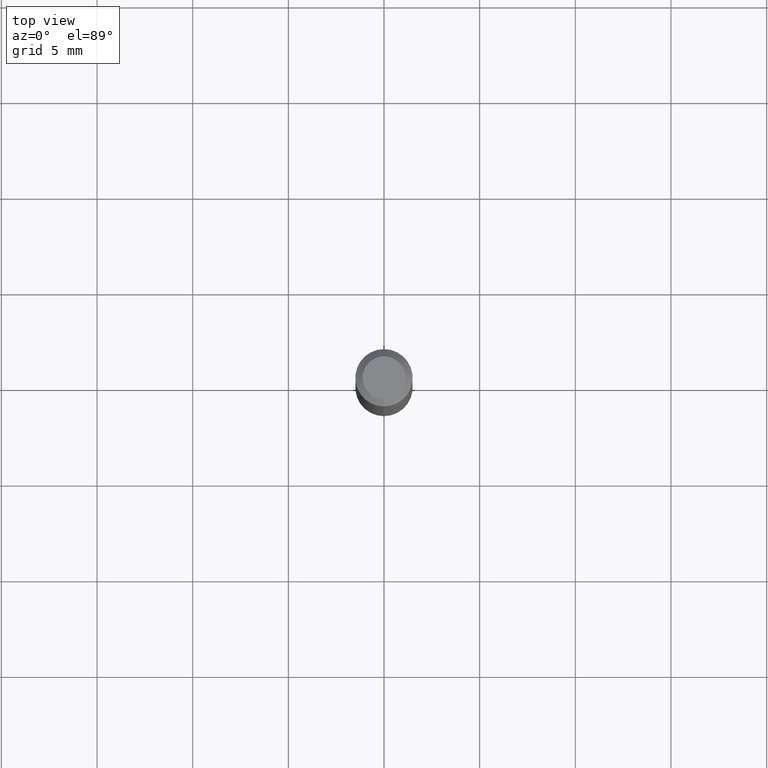
[diagram: clean part render]
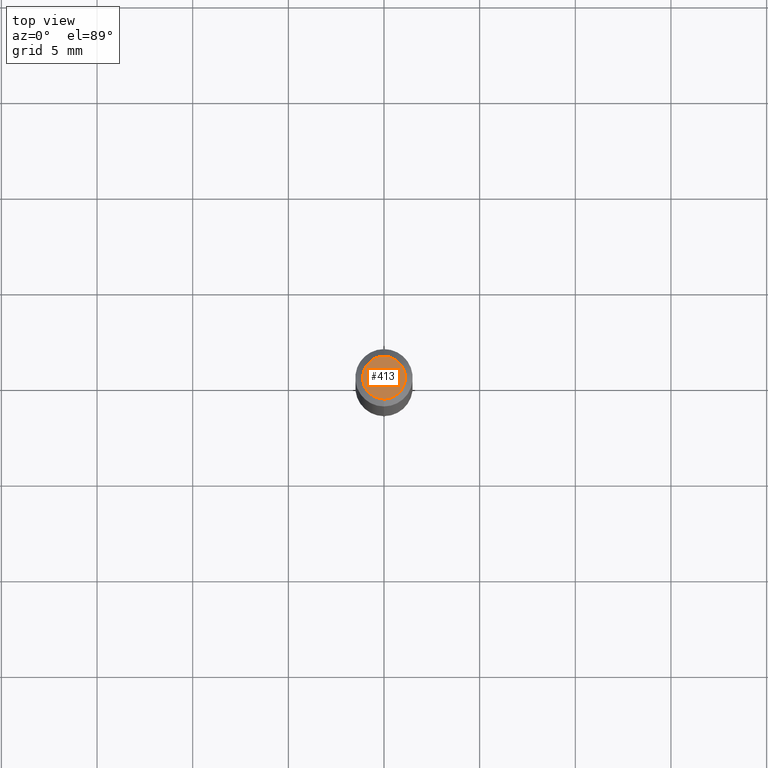
[diagram: same view with one face highlighted and labeled with its STEP entity id]
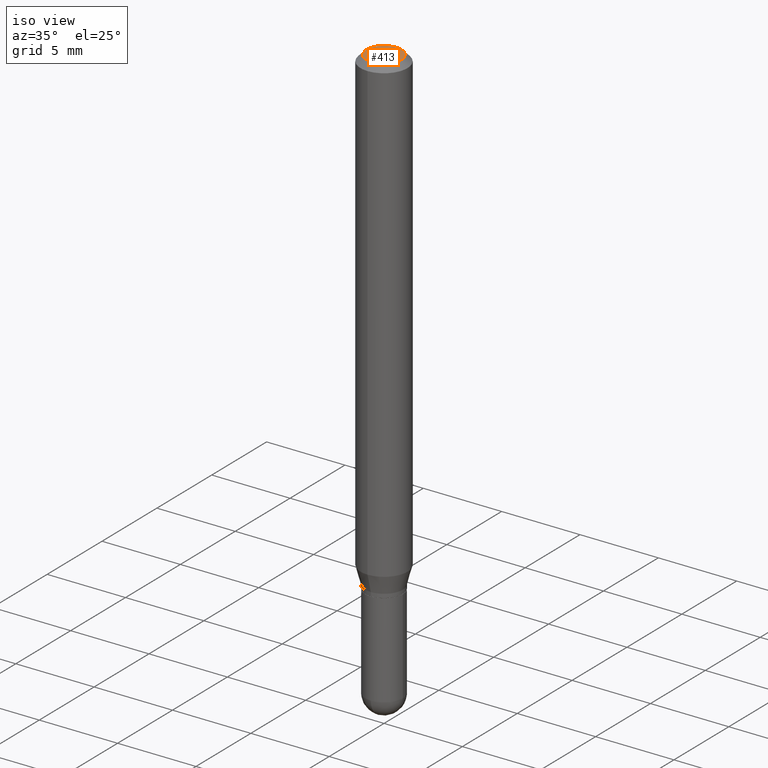
[diagram: same view with one face highlighted and labeled with its STEP entity id]
A machine part, top view. The second image highlights one B-rep face of the part: STEP entity #413.
A second angle (iso view) of the same face is appended — the face is thin or edge-on in the first view.
In plain terms, the highlighted planar face has unit normal (0, -0, -1).
Its self-contained STEP definition (entity closure, byte-faithful):
#4 = AXIS2_PLACEMENT_3D ( 'NONE', #217, #78, #372 ) ;
#7 = EDGE_CURVE ( 'NONE', #102, #155, #228, .T. ) ;
#18 = EDGE_CURVE ( 'NONE', #155, #102, #407, .T. ) ;
#34 = CARTESIAN_POINT ( 'NONE',  ( -3.536586717851222218E-16, -0.04404999999999999888, 1.299455316038616904E-16 ) ) ;
#50 = ORIENTED_EDGE ( 'NONE', *, *, #18, .T. ) ;
#76 = PLANE ( 'NONE',  #409 ) ;
#78 = DIRECTION ( 'NONE',  ( -2.445405226276608487E-29, 3.491572388890901817E-15, 1.000000000000000000 ) ) ;
#102 = VERTEX_POINT ( 'NONE', #34 ) ;
#155 = VERTEX_POINT ( 'NONE', #454 ) ;
#190 = CARTESIAN_POINT ( 'NONE',  ( 5.834304553255448569E-46, -8.330274454162373459E-32, -2.385823212678253349E-17 ) ) ;
#197 = CARTESIAN_POINT ( 'NONE',  ( 3.075995059520799729E-16, 0.04404999999999999888, -1.657328797940354752E-16 ) ) ;
#217 = CARTESIAN_POINT ( 'NONE',  ( 5.834304553255448569E-46, -8.330274454162373459E-32, -2.385823212678253349E-17 ) ) ;
#224 = DIRECTION ( 'NONE',  ( 2.445405226276607927E-29, -3.491572388890901817E-15, -1.000000000000000000 ) ) ;
#228 = CIRCLE ( 'NONE', #4, 0.04404999999999999888 ) ;
#301 = AXIS2_PLACEMENT_3D ( 'NONE', #190, #501, #445 ) ;
#321 = ORIENTED_EDGE ( 'NONE', *, *, #7, .T. ) ;
#328 = FACE_OUTER_BOUND ( 'NONE', #332, .T. ) ;
#332 = EDGE_LOOP ( 'NONE', ( #50, #321 ) ) ;
#342 = DIRECTION ( 'NONE',  ( 6.982962677686265922E-15, 1.000000000000000000, -3.491572388890901817E-15 ) ) ;
#372 = DIRECTION ( 'NONE',  ( -6.982962677686265133E-15, -1.000000000000000000, 3.491572388890902212E-15 ) ) ;
#407 = CIRCLE ( 'NONE', #301, 0.04404999999999999888 ) ;
#409 = AXIS2_PLACEMENT_3D ( 'NONE', #197, #224, #342 ) ;
#413 = ADVANCED_FACE ( 'NONE', ( #328 ), #76, .F. ) ;
#445 = DIRECTION ( 'NONE',  ( -6.982962677686265133E-15, -1.000000000000000000, 3.491572388890902212E-15 ) ) ;
#454 = CARTESIAN_POINT ( 'NONE',  ( 3.599717260347271507E-16, 0.04404999999999999888, -1.776619958574267204E-16 ) ) ;
#501 = DIRECTION ( 'NONE',  ( -2.445405226276608487E-29, 3.491572388890901817E-15, 1.000000000000000000 ) ) ;